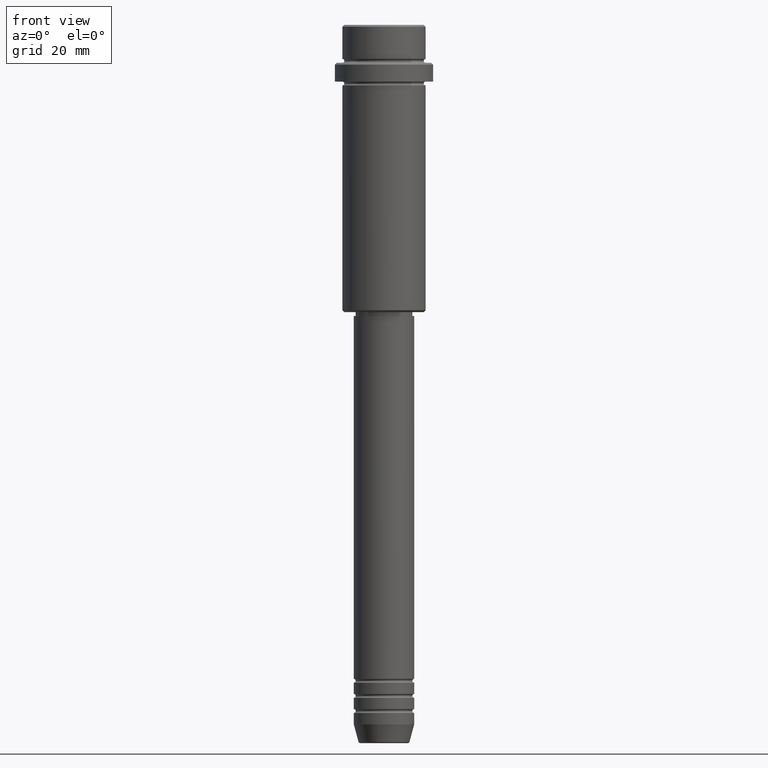
[diagram: clean part render]
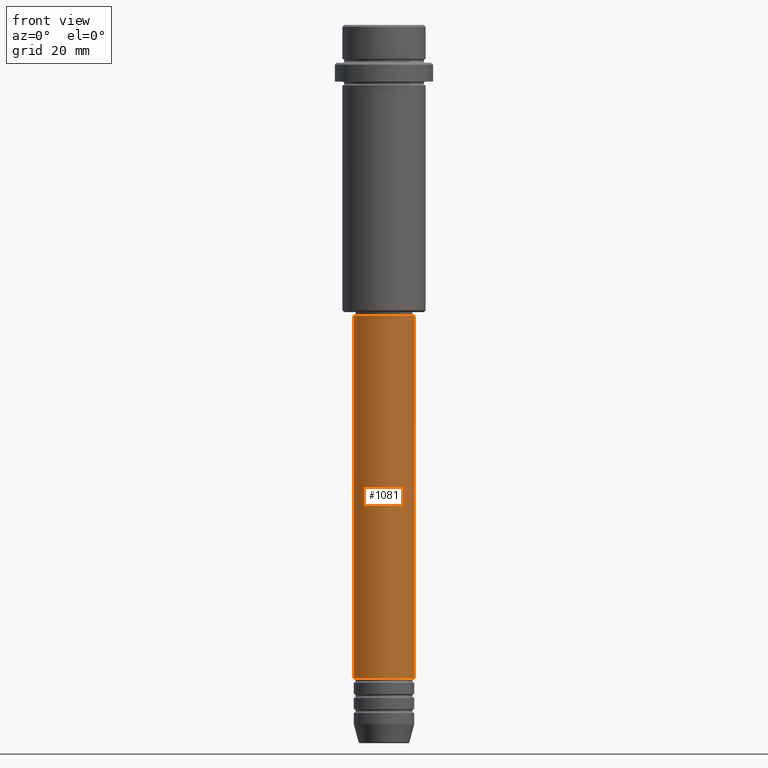
[diagram: same view with one face highlighted and labeled with its STEP entity id]
A machine part, front view. The second image highlights one B-rep face of the part: STEP entity #1081.
In plain terms, the highlighted cylindrical surface (edge-blend (fillet) strip) has radius 8 mm, axis along (-0, -0, 1).
Its self-contained STEP definition (entity closure, byte-faithful):
#93 = VERTEX_POINT ( 'NONE', #981 ) ;
#166 = CARTESIAN_POINT ( 'NONE',  ( -8.000000000000000000, 9.797174393178825657E-16, -77.00000000000000000 ) ) ;
#183 = CARTESIAN_POINT ( 'NONE',  ( -8.000000000000000000, 9.797174393178825657E-16, 0.000000000000000000 ) ) ;
#232 = DIRECTION ( 'NONE',  ( -0.000000000000000000, -0.000000000000000000, 1.000000000000000000 ) ) ;
#244 = VERTEX_POINT ( 'NONE', #166 ) ;
#245 = CARTESIAN_POINT ( 'NONE',  ( 0.000000000000000000, 0.000000000000000000, 0.000000000000000000 ) ) ;
#348 = CARTESIAN_POINT ( 'NONE',  ( 0.000000000000000000, 0.000000000000000000, -77.00000000000000000 ) ) ;
#353 = ORIENTED_EDGE ( 'NONE', *, *, #1043, .F. ) ;
#356 = CARTESIAN_POINT ( 'NONE',  ( -8.000000000000000000, 9.797174393178825657E-16, -172.9999999999999147 ) ) ;
#460 = VECTOR ( 'NONE', #1054, 1000.000000000000000 ) ;
#521 = LINE ( 'NONE', #183, #690 ) ;
#580 = ORIENTED_EDGE ( 'NONE', *, *, #1195, .F. ) ;
#604 = AXIS2_PLACEMENT_3D ( 'NONE', #1016, #693, #894 ) ;
#611 = CARTESIAN_POINT ( 'NONE',  ( 8.000000000000000000, 0.000000000000000000, 0.000000000000000000 ) ) ;
#648 = CIRCLE ( 'NONE', #604, 8.000000000000000000 ) ;
#675 = ORIENTED_EDGE ( 'NONE', *, *, #1225, .T. ) ;
#690 = VECTOR ( 'NONE', #763, 1000.000000000000000 ) ;
#693 = DIRECTION ( 'NONE',  ( -0.000000000000000000, -0.000000000000000000, 1.000000000000000000 ) ) ;
#746 = VERTEX_POINT ( 'NONE', #356 ) ;
#763 = DIRECTION ( 'NONE',  ( -0.000000000000000000, -0.000000000000000000, 1.000000000000000000 ) ) ;
#785 = AXIS2_PLACEMENT_3D ( 'NONE', #348, #1220, #1121 ) ;
#788 = DIRECTION ( 'NONE',  ( 1.000000000000000000, 0.000000000000000000, 0.000000000000000000 ) ) ;
#792 = CYLINDRICAL_SURFACE ( 'NONE', #1037, 8.000000000000000000 ) ;
#831 = ORIENTED_EDGE ( 'NONE', *, *, #1112, .T. ) ;
#894 = DIRECTION ( 'NONE',  ( 1.000000000000000000, 0.000000000000000000, 0.000000000000000000 ) ) ;
#957 = CIRCLE ( 'NONE', #785, 8.000000000000000000 ) ;
#981 = CARTESIAN_POINT ( 'NONE',  ( 8.000000000000000000, 0.000000000000000000, -77.00000000000000000 ) ) ;
#1016 = CARTESIAN_POINT ( 'NONE',  ( 0.000000000000000000, 0.000000000000000000, -172.9999999999999147 ) ) ;
#1037 = AXIS2_PLACEMENT_3D ( 'NONE', #245, #232, #788 ) ;
#1038 = LINE ( 'NONE', #611, #460 ) ;
#1043 = EDGE_CURVE ( 'NONE', #746, #244, #521, .T. ) ;
#1054 = DIRECTION ( 'NONE',  ( -0.000000000000000000, -0.000000000000000000, 1.000000000000000000 ) ) ;
#1081 = ADVANCED_FACE ( 'NONE', ( #1227 ), #792, .T. ) ;
#1107 = EDGE_LOOP ( 'NONE', ( #353, #831, #675, #580 ) ) ;
#1112 = EDGE_CURVE ( 'NONE', #746, #1169, #648, .T. ) ;
#1121 = DIRECTION ( 'NONE',  ( 1.000000000000000000, 0.000000000000000000, 0.000000000000000000 ) ) ;
#1130 = CARTESIAN_POINT ( 'NONE',  ( 8.000000000000000000, 0.000000000000000000, -172.9999999999999147 ) ) ;
#1169 = VERTEX_POINT ( 'NONE', #1130 ) ;
#1195 = EDGE_CURVE ( 'NONE', #244, #93, #957, .T. ) ;
#1220 = DIRECTION ( 'NONE',  ( -0.000000000000000000, -0.000000000000000000, 1.000000000000000000 ) ) ;
#1225 = EDGE_CURVE ( 'NONE', #1169, #93, #1038, .T. ) ;
#1227 = FACE_OUTER_BOUND ( 'NONE', #1107, .T. ) ;